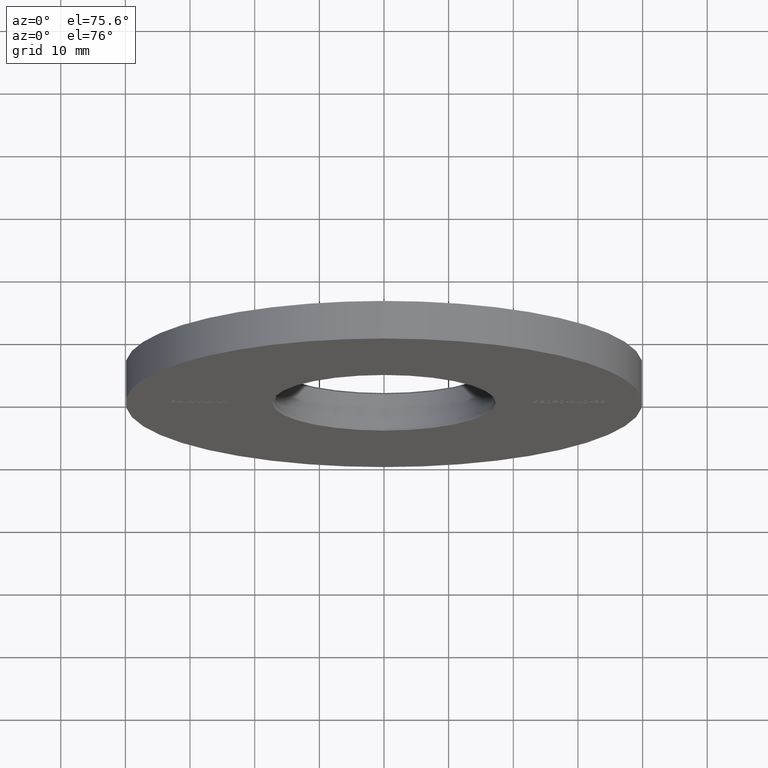
[diagram: clean part render]
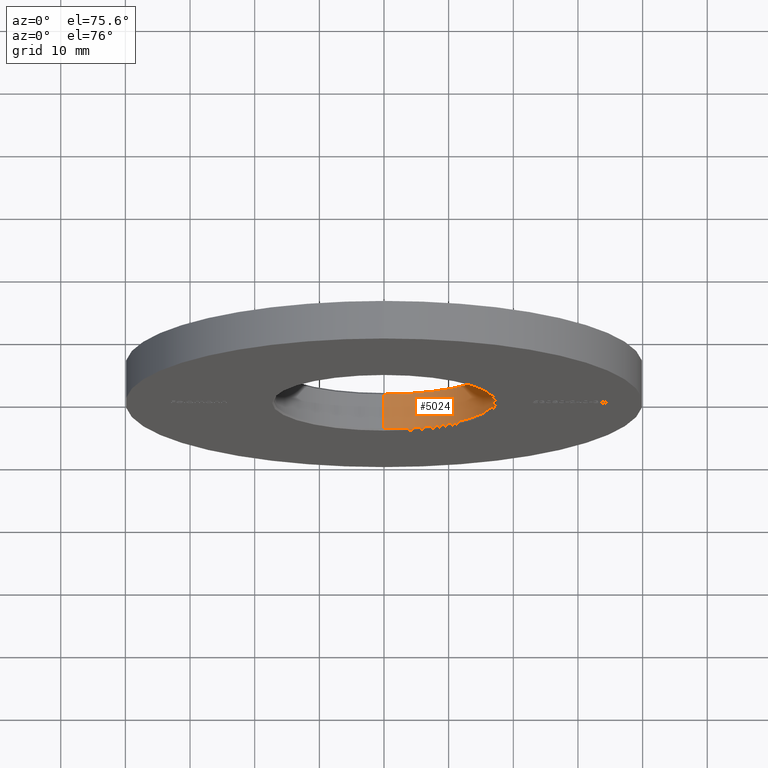
[diagram: same view with one face highlighted and labeled with its STEP entity id]
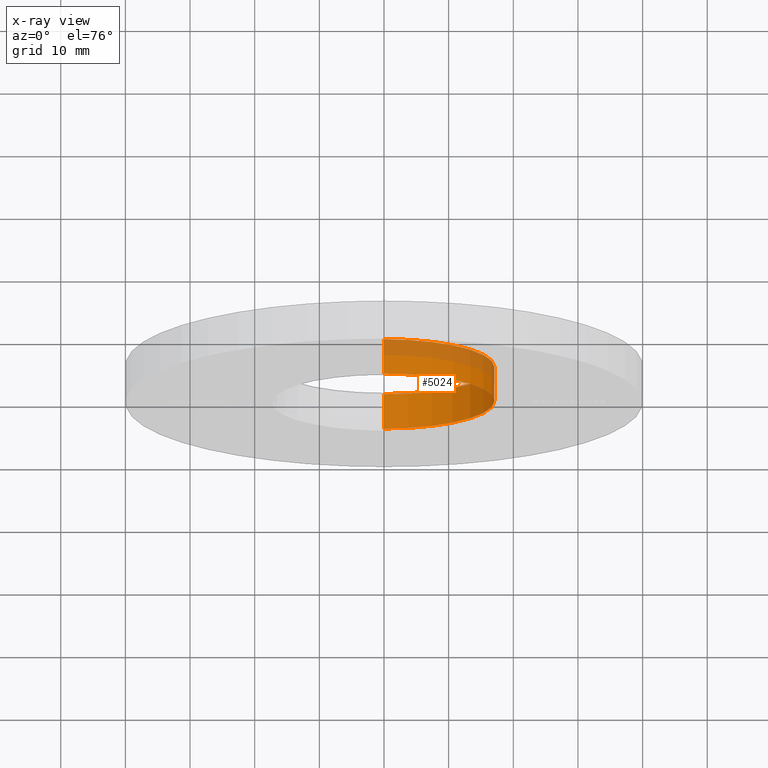
[diagram: x-ray of the same camera — body ghosted, the highlighted face saturated]
A machine part, auxiliary view. The second image highlights one B-rep face of the part: STEP entity #5024.
The next image is the same camera in x-ray: the body ghosted, the highlighted face saturated — about 25% of this face is hidden behind the body in this view.
In plain terms, the highlighted cylindrical surface (partial cylindrical patch) has radius 17.05 mm, axis along (-0, -1, -0).
Its self-contained STEP definition (entity closure, byte-faithful):
#291 = CARTESIAN_POINT ( 'NONE',  ( 0.000000000000000000, 5.749999999999985789, -17.05000000000000071 ) ) ;
#579 = FACE_OUTER_BOUND ( 'NONE', #14299, .T. ) ;
#1257 = DIRECTION ( 'NONE',  ( -0.000000000000000000, -1.000000000000000000, -0.000000000000000000 ) ) ;
#1599 = CARTESIAN_POINT ( 'NONE',  ( 2.088022792546237353E-15, 6.000000000000000000, 17.05000000000000071 ) ) ;
#1832 = LINE ( 'NONE', #1599, #8197 ) ;
#1874 = LINE ( 'NONE', #6508, #9293 ) ;
#1979 = AXIS2_PLACEMENT_3D ( 'NONE', #15409, #16611, #3577 ) ;
#2821 = ORIENTED_EDGE ( 'NONE', *, *, #10857, .T. ) ;
#2975 = ORIENTED_EDGE ( 'NONE', *, *, #13540, .F. ) ;
#3577 = DIRECTION ( 'NONE',  ( 0.000000000000000000, 0.000000000000000000, 1.000000000000000000 ) ) ;
#3698 = VERTEX_POINT ( 'NONE', #291 ) ;
#4155 = VERTEX_POINT ( 'NONE', #13295 ) ;
#5024 = ADVANCED_FACE ( 'NONE', ( #579 ), #10869, .F. ) ;
#5853 = EDGE_CURVE ( 'NONE', #15636, #3698, #10033, .T. ) ;
#6508 = CARTESIAN_POINT ( 'NONE',  ( 0.000000000000000000, 6.000000000000000000, -17.05000000000000071 ) ) ;
#6629 = DIRECTION ( 'NONE',  ( -0.000000000000000000, -1.000000000000000000, -0.000000000000000000 ) ) ;
#7316 = CIRCLE ( 'NONE', #1979, 17.05000000000000071 ) ;
#7463 = DIRECTION ( 'NONE',  ( -0.000000000000000000, -1.000000000000000000, -0.000000000000000000 ) ) ;
#8197 = VECTOR ( 'NONE', #1257, 1000.000000000000000 ) ;
#8301 = EDGE_CURVE ( 'NONE', #4155, #12475, #7316, .T. ) ;
#8684 = CARTESIAN_POINT ( 'NONE',  ( 0.000000000000000000, 6.000000000000000000, 0.000000000000000000 ) ) ;
#9103 = CARTESIAN_POINT ( 'NONE',  ( 0.000000000000000000, 5.749999999999985789, 0.000000000000000000 ) ) ;
#9293 = VECTOR ( 'NONE', #6629, 1000.000000000000000 ) ;
#10033 = CIRCLE ( 'NONE', #12316, 17.05000000000000071 ) ;
#10857 = EDGE_CURVE ( 'NONE', #3698, #4155, #1874, .T. ) ;
#10869 = CYLINDRICAL_SURFACE ( 'NONE', #15513, 17.05000000000000071 ) ;
#12168 = CARTESIAN_POINT ( 'NONE',  ( 2.088022792546237353E-15, 5.749999999999985789, 17.05000000000000071 ) ) ;
#12316 = AXIS2_PLACEMENT_3D ( 'NONE', #9103, #14370, #12973 ) ;
#12475 = VERTEX_POINT ( 'NONE', #12646 ) ;
#12646 = CARTESIAN_POINT ( 'NONE',  ( 2.088022792546237353E-15, 0.2499999999999863443, 17.05000000000000071 ) ) ;
#12973 = DIRECTION ( 'NONE',  ( 0.000000000000000000, 0.000000000000000000, 1.000000000000000000 ) ) ;
#13295 = CARTESIAN_POINT ( 'NONE',  ( 0.000000000000000000, 0.2499999999999863443, -17.05000000000000071 ) ) ;
#13540 = EDGE_CURVE ( 'NONE', #15636, #12475, #1832, .T. ) ;
#14299 = EDGE_LOOP ( 'NONE', ( #2975, #16159, #2821, #16009 ) ) ;
#14370 = DIRECTION ( 'NONE',  ( 0.000000000000000000, 1.000000000000000000, 0.000000000000000000 ) ) ;
#15277 = DIRECTION ( 'NONE',  ( 0.000000000000000000, 0.000000000000000000, -1.000000000000000000 ) ) ;
#15409 = CARTESIAN_POINT ( 'NONE',  ( 0.000000000000000000, 0.2499999999999863443, 0.000000000000000000 ) ) ;
#15513 = AXIS2_PLACEMENT_3D ( 'NONE', #8684, #7463, #15277 ) ;
#15636 = VERTEX_POINT ( 'NONE', #12168 ) ;
#16009 = ORIENTED_EDGE ( 'NONE', *, *, #8301, .T. ) ;
#16159 = ORIENTED_EDGE ( 'NONE', *, *, #5853, .T. ) ;
#16611 = DIRECTION ( 'NONE',  ( -0.000000000000000000, -1.000000000000000000, -0.000000000000000000 ) ) ;